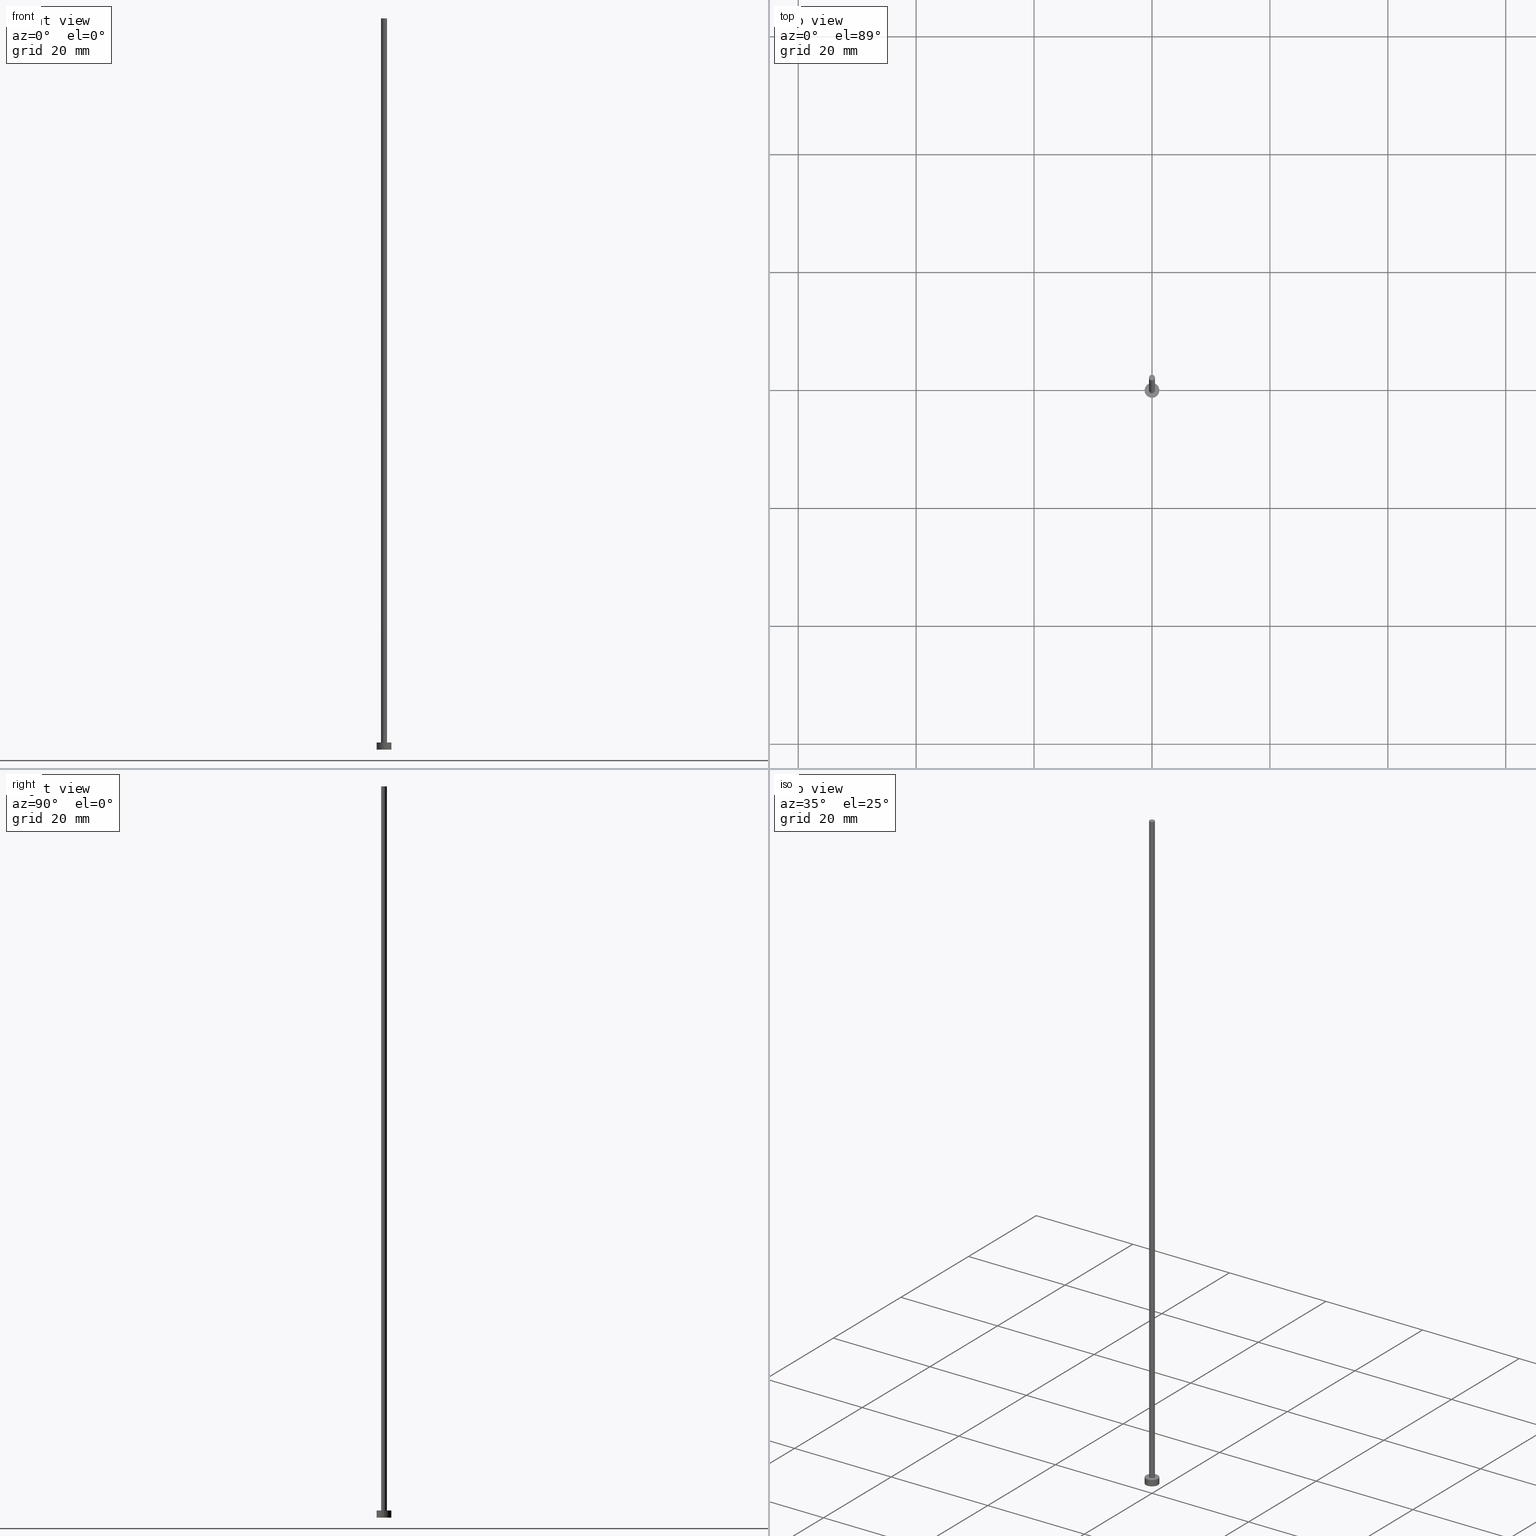
[diagram: canonical four-view strip — front | top / right | iso, engineering-drawing reading convention]
A machine part, canonical four-view strip (front | top / right | iso — engineering-drawing reading convention). The complete STEP part file that produces these views, byte-faithful:
ISO-10303-21;
HEADER;
FILE_DESCRIPTION (( 'STEP AP203' ),
    '1' );
FILE_NAME ('edaf.STEP',
    '2023-04-04T13:15:57',
    ( '' ),
    ( '' ),
    'SwSTEP 2.0',
    'SolidWorks 2019',
    '' );
FILE_SCHEMA (( 'CONFIG_CONTROL_DESIGN' ));
ENDSEC;

DATA;
#1 = APPROVAL_STATUS ( 'not_yet_approved' ) ;
#2 = APPROVAL_STATUS ( 'not_yet_approved' ) ;
#3 = EDGE_LOOP ( 'NONE', ( #116, #196, #43, #94 ) ) ;
#4 = LOCAL_TIME ( 15, 15, 57.00000000000000000, #36 ) ;
#5 = EDGE_LOOP ( 'NONE', ( #78, #132, #115, #60 ) ) ;
#6 = ADVANCED_FACE ( 'NONE', ( #133 ), #218, .T. ) ;
#7 = CARTESIAN_POINT ( 'NONE',  ( -1.250000000000000000, 0.000000000000000000, 1.199999999999999956 ) ) ;
#8 = DIRECTION ( 'NONE',  ( 0.000000000000000000, 0.000000000000000000, 1.000000000000000000 ) ) ;
#9 = DIRECTION ( 'NONE',  ( 1.000000000000000000, 0.000000000000000000, -0.000000000000000000 ) ) ;
#10 = EDGE_CURVE ( 'NONE', #154, #240, #245, .T. ) ;
#11 = FACE_OUTER_BOUND ( 'NONE', #5, .T. ) ;
#12 = DIRECTION ( 'NONE',  ( 1.000000000000000000, 0.000000000000000000, 0.000000000000000000 ) ) ;
#13 = AXIS2_PLACEMENT_3D ( 'NONE', #205, #51, #207 ) ;
#14 = AXIS2_PLACEMENT_3D ( 'NONE', #252, #37, #168 ) ;
#15 = APPROVAL_ROLE ( '' ) ;
#16 = AXIS2_PLACEMENT_3D ( 'NONE', #29, #52, #12 ) ;
#17 = CARTESIAN_POINT ( 'NONE',  ( 1.250000000000000000, 1.530808498934191571E-16, 1.199999999999999956 ) ) ;
#18 = DATE_TIME_ROLE ( 'classification_date' ) ;
#19 = EDGE_LOOP ( 'NONE', ( #41, #198 ) ) ;
#20 = CIRCLE ( 'NONE', #224, 0.5000000000000000000 ) ;
#21 = APPROVAL_PERSON_ORGANIZATION ( #34, #31, #15 ) ;
#22 = VERTEX_POINT ( 'NONE', #64 ) ;
#23 = ADVANCED_FACE ( 'NONE', ( #121, #246 ), #126, .T. ) ;
#24 = ORIENTED_EDGE ( 'NONE', *, *, #93, .F. ) ;
#25 = DIRECTION ( 'NONE',  ( 0.000000000000000000, 0.000000000000000000, 1.000000000000000000 ) ) ;
#26 = CARTESIAN_POINT ( 'NONE',  ( 0.000000000000000000, 0.000000000000000000, 124.0000000000000000 ) ) ;
#27 = AXIS2_PLACEMENT_3D ( 'NONE', #206, #225, #139 ) ;
#28 = DIRECTION ( 'NONE',  ( -0.000000000000000000, -0.000000000000000000, -1.000000000000000000 ) ) ;
#29 = CARTESIAN_POINT ( 'NONE',  ( 0.000000000000000000, 0.000000000000000000, 1.199999999999999956 ) ) ;
#30 = CARTESIAN_POINT ( 'NONE',  ( -1.250000000000000000, 0.000000000000000000, 0.000000000000000000 ) ) ;
#31 = APPROVAL ( #190, 'NEUR�EN�' ) ;
#32 = DIRECTION ( 'NONE',  ( 0.000000000000000000, 0.000000000000000000, 1.000000000000000000 ) ) ;
#33 = DESIGN_CONTEXT ( 'detailed design', #35, 'design' ) ;
#34 = PERSON_AND_ORGANIZATION ( #56, #156 ) ;
#35 = APPLICATION_CONTEXT ( 'configuration controlled 3d designs of mechanical parts and assemblies' ) ;
#36 = COORDINATED_UNIVERSAL_TIME_OFFSET ( 1, 0, .AHEAD. ) ;
#37 = DIRECTION ( 'NONE',  ( 0.000000000000000000, 0.000000000000000000, 1.000000000000000000 ) ) ;
#38 = CC_DESIGN_APPROVAL ( #97, ( #220 ) ) ;
#39 = DIRECTION ( 'NONE',  ( 1.000000000000000000, 0.000000000000000000, 0.000000000000000000 ) ) ;
#40 = COORDINATED_UNIVERSAL_TIME_OFFSET ( 1, 0, .AHEAD. ) ;
#41 = ORIENTED_EDGE ( 'NONE', *, *, #53, .F. ) ;
#42 = EDGE_CURVE ( 'NONE', #240, #154, #211, .T. ) ;
#43 = ORIENTED_EDGE ( 'NONE', *, *, #157, .T. ) ;
#44 = CIRCLE ( 'NONE', #180, 1.250000000000000000 ) ;
#45 = LOCAL_TIME ( 15, 15, 57.00000000000000000, #40 ) ;
#46 = ORIENTED_EDGE ( 'NONE', *, *, #148, .T. ) ;
#47 = AXIS2_PLACEMENT_3D ( 'NONE', #26, #203, #80 ) ;
#48 = CARTESIAN_POINT ( 'NONE',  ( 0.000000000000000000, 0.000000000000000000, 0.000000000000000000 ) ) ;
#49 = DIRECTION ( 'NONE',  ( 1.000000000000000000, 0.000000000000000000, 0.000000000000000000 ) ) ;
#50 = FACE_OUTER_BOUND ( 'NONE', #244, .T. ) ;
#51 = DIRECTION ( 'NONE',  ( -0.000000000000000000, -0.000000000000000000, -1.000000000000000000 ) ) ;
#52 = DIRECTION ( 'NONE',  ( 0.000000000000000000, 0.000000000000000000, 1.000000000000000000 ) ) ;
#53 = EDGE_CURVE ( 'NONE', #22, #155, #20, .T. ) ;
#54 = PERSON_AND_ORGANIZATION ( #56, #156 ) ;
#55 = FACE_OUTER_BOUND ( 'NONE', #223, .T. ) ;
#56 = PERSON ( 'NEUR�EN�', 'NEUR�EN�', 'NEUR�EN�', ('NEUR�EN�'), ('NEUR�EN�'), ('NEUR�EN�') ) ;
#57 = CYLINDRICAL_SURFACE ( 'NONE', #105, 1.250000000000000000 ) ;
#58 = COORDINATED_UNIVERSAL_TIME_OFFSET ( 1, 0, .AHEAD. ) ;
#59 = CC_DESIGN_PERSON_AND_ORGANIZATION_ASSIGNMENT ( #193, #143, ( #220 ) ) ;
#60 = ORIENTED_EDGE ( 'NONE', *, *, #157, .F. ) ;
#61 = ORIENTED_EDGE ( 'NONE', *, *, #208, .F. ) ;
#62 = PLANE ( 'NONE',  #47 ) ;
#63 = CARTESIAN_POINT ( 'NONE',  ( -1.250000000000000000, 0.000000000000000000, 1.199999999999999956 ) ) ;
#64 = CARTESIAN_POINT ( 'NONE',  ( -0.5000000000000000000, 0.000000000000000000, 1.199999999999999956 ) ) ;
#65 = CARTESIAN_POINT ( 'NONE',  ( 0.5000000000000000000, 6.123233995736766036E-17, 1.199999999999999956 ) ) ;
#66 = CARTESIAN_POINT ( 'NONE',  ( 0.000000000000000000, 0.000000000000000000, 1.199999999999999956 ) ) ;
#67 = PRODUCT ( 'edaf', 'edaf', '', ( #170 ) ) ;
#68 = DATE_AND_TIME ( #70, #234 ) ;
#69 = VECTOR ( 'NONE', #28, 1000.000000000000000 ) ;
#70 = CALENDAR_DATE ( 2023, 4, 4 ) ;
#71 = CIRCLE ( 'NONE', #16, 1.250000000000000000 ) ;
#72 = DIRECTION ( 'NONE',  ( -0.000000000000000000, -0.000000000000000000, -1.000000000000000000 ) ) ;
#73 = AXIS2_PLACEMENT_3D ( 'NONE', #248, #138, #160 ) ;
#74 = APPROVAL_ROLE ( '' ) ;
#75 = SECURITY_CLASSIFICATION ( '', '', #210 ) ;
#76 = ORIENTED_EDGE ( 'NONE', *, *, #106, .T. ) ;
#77 = CIRCLE ( 'NONE', #117, 1.250000000000000000 ) ;
#78 = ORIENTED_EDGE ( 'NONE', *, *, #10, .F. ) ;
#79 = EDGE_CURVE ( 'NONE', #155, #22, #197, .T. ) ;
#80 = DIRECTION ( 'NONE',  ( 1.000000000000000000, 0.000000000000000000, -0.000000000000000000 ) ) ;
#81 = AXIS2_PLACEMENT_3D ( 'NONE', #120, #8, #124 ) ;
#82 = DIRECTION ( 'NONE',  ( 0.000000000000000000, 0.000000000000000000, 1.000000000000000000 ) ) ;
#83 = CYLINDRICAL_SURFACE ( 'NONE', #27, 1.250000000000000000 ) ;
#84 = LINE ( 'NONE', #85, #114 ) ;
#85 = CARTESIAN_POINT ( 'NONE',  ( 1.250000000000000000, 1.530808498934191571E-16, 1.199999999999999956 ) ) ;
#86 = UNCERTAINTY_MEASURE_WITH_UNIT (LENGTH_MEASURE( 1.000000000000000082E-05 ), #237, 'distance_accuracy_value', 'NONE');
#87 = FACE_OUTER_BOUND ( 'NONE', #176, .T. ) ;
#88 = CARTESIAN_POINT ( 'NONE',  ( -0.5000000000000000000, 0.000000000000000000, 124.0000000000000000 ) ) ;
#89 =( NAMED_UNIT ( * ) PLANE_ANGLE_UNIT ( ) SI_UNIT ( $, .RADIAN. ) );
#90 = APPLICATION_PROTOCOL_DEFINITION ( 'international standard', 'config_control_design', 1994, #35 ) ;
#91 = AXIS2_PLACEMENT_3D ( 'NONE', #179, #142, #9 ) ;
#92 = EDGE_LOOP ( 'NONE', ( #96, #158 ) ) ;
#93 = EDGE_CURVE ( 'NONE', #242, #217, #84, .T. ) ;
#94 = ORIENTED_EDGE ( 'NONE', *, *, #53, .T. ) ;
#95 = VERTEX_POINT ( 'NONE', #63 ) ;
#96 = ORIENTED_EDGE ( 'NONE', *, *, #215, .T. ) ;
#97 = APPROVAL ( #1, 'NEUR�EN�' ) ;
#98 = CARTESIAN_POINT ( 'NONE',  ( 1.250000000000000000, 1.530808498934191571E-16, 0.000000000000000000 ) ) ;
#99 = DIRECTION ( 'NONE',  ( -0.000000000000000000, -0.000000000000000000, -1.000000000000000000 ) ) ;
#100 = AXIS2_PLACEMENT_3D ( 'NONE', #130, #32, #39 ) ;
#101 = CARTESIAN_POINT ( 'NONE',  ( 0.5000000000000000000, 6.123233995736766036E-17, 124.0000000000000000 ) ) ;
#102 = CARTESIAN_POINT ( 'NONE',  ( 0.000000000000000000, 0.000000000000000000, 124.0000000000000000 ) ) ;
#103 = CARTESIAN_POINT ( 'NONE',  ( 0.000000000000000000, 0.000000000000000000, 1.199999999999999956 ) ) ;
#104 = PLANE ( 'NONE',  #14 ) ;
#105 = AXIS2_PLACEMENT_3D ( 'NONE', #189, #72, #191 ) ;
#106 = EDGE_CURVE ( 'NONE', #217, #201, #44, .T. ) ;
#107 = PERSON_AND_ORGANIZATION ( #56, #156 ) ;
#108 = APPLICATION_PROTOCOL_DEFINITION ( 'international standard', 'config_control_design', 1994, #167 ) ;
#109 = DATE_AND_TIME ( #235, #188 ) ;
#110 = EDGE_CURVE ( 'NONE', #95, #201, #183, .T. ) ;
#111 = CC_DESIGN_SECURITY_CLASSIFICATION ( #75, ( #220 ) ) ;
#112 = PERSON_AND_ORGANIZATION ( #56, #156 ) ;
#113 = DATE_AND_TIME ( #195, #118 ) ;
#114 = VECTOR ( 'NONE', #99, 1000.000000000000000 ) ;
#115 = ORIENTED_EDGE ( 'NONE', *, *, #79, .T. ) ;
#116 = ORIENTED_EDGE ( 'NONE', *, *, #137, .F. ) ;
#117 = AXIS2_PLACEMENT_3D ( 'NONE', #103, #186, #165 ) ;
#118 = LOCAL_TIME ( 15, 15, 57.00000000000000000, #58 ) ;
#119 = FACE_OUTER_BOUND ( 'NONE', #239, .T. ) ;
#120 = CARTESIAN_POINT ( 'NONE',  ( 0.000000000000000000, 0.000000000000000000, 1.199999999999999956 ) ) ;
#121 = FACE_BOUND ( 'NONE', #19, .T. ) ;
#122 = CC_DESIGN_APPROVAL ( #31, ( #253 ) ) ;
#123 = APPROVAL ( #2, 'NEUR�EN�' ) ;
#124 = DIRECTION ( 'NONE',  ( 1.000000000000000000, 0.000000000000000000, 0.000000000000000000 ) ) ;
#125 = PRODUCT_DEFINITION_SHAPE ( 'NONE', 'NONE',  #253 ) ;
#126 = PLANE ( 'NONE',  #91 ) ;
#127 = PERSON_AND_ORGANIZATION_ROLE ( 'design_supplier' ) ;
#128 = ADVANCED_FACE ( 'NONE', ( #50 ), #83, .T. ) ;
#129 = APPROVAL_PERSON_ORGANIZATION ( #216, #123, #74 ) ;
#130 = CARTESIAN_POINT ( 'NONE',  ( 0.000000000000000000, 0.000000000000000000, 0.000000000000000000 ) ) ;
#131 = PERSON_AND_ORGANIZATION ( #56, #156 ) ;
#132 = ORIENTED_EDGE ( 'NONE', *, *, #137, .T. ) ;
#133 = FACE_OUTER_BOUND ( 'NONE', #3, .T. ) ;
#134 = VECTOR ( 'NONE', #163, 1000.000000000000000 ) ;
#135 = CARTESIAN_POINT ( 'NONE',  ( 0.000000000000000000, 0.000000000000000000, 124.0000000000000000 ) ) ;
#136 = ORIENTED_EDGE ( 'NONE', *, *, #110, .F. ) ;
#137 = EDGE_CURVE ( 'NONE', #154, #155, #162, .T. ) ;
#138 = DIRECTION ( 'NONE',  ( 0.000000000000000000, 0.000000000000000000, 1.000000000000000000 ) ) ;
#139 = DIRECTION ( 'NONE',  ( -1.000000000000000000, 0.000000000000000000, 0.000000000000000000 ) ) ;
#140 = CARTESIAN_POINT ( 'NONE',  ( 0.000000000000000000, 0.000000000000000000, 0.000000000000000000 ) ) ;
#141 = LINE ( 'NONE', #184, #182 ) ;
#142 = DIRECTION ( 'NONE',  ( 0.000000000000000000, 0.000000000000000000, 1.000000000000000000 ) ) ;
#143 = PERSON_AND_ORGANIZATION_ROLE ( 'creator' ) ;
#144 = AXIS2_PLACEMENT_3D ( 'NONE', #135, #221, #249 ) ;
#145 = AXIS2_PLACEMENT_3D ( 'NONE', #48, #250, #226 ) ;
#146 = APPROVAL_ROLE ( '' ) ;
#147 = PERSON_AND_ORGANIZATION ( #56, #156 ) ;
#148 = EDGE_CURVE ( 'NONE', #201, #217, #241, .T. ) ;
#149 = COORDINATED_UNIVERSAL_TIME_OFFSET ( 1, 0, .AHEAD. ) ;
#150 = CALENDAR_DATE ( 2023, 4, 4 ) ;
#151 = APPROVAL_PERSON_ORGANIZATION ( #112, #97, #146 ) ;
#152 = PRODUCT_RELATED_PRODUCT_CATEGORY ( 'detail', '', ( #67 ) ) ;
#153 = ORIENTED_EDGE ( 'NONE', *, *, #106, .F. ) ;
#154 = VERTEX_POINT ( 'NONE', #101 ) ;
#155 = VERTEX_POINT ( 'NONE', #65 ) ;
#156 = ORGANIZATION ( 'NEUR�EN�', 'NEUR�EN�', '' ) ;
#157 = EDGE_CURVE ( 'NONE', #240, #22, #141, .T. ) ;
#158 = ORIENTED_EDGE ( 'NONE', *, *, #208, .T. ) ;
#159 = ORIENTED_EDGE ( 'NONE', *, *, #42, .T. ) ;
#160 = DIRECTION ( 'NONE',  ( 1.000000000000000000, 0.000000000000000000, 0.000000000000000000 ) ) ;
#161 = CARTESIAN_POINT ( 'NONE',  ( 0.5000000000000000000, 6.123233995736766036E-17, 124.0000000000000000 ) ) ;
#162 = LINE ( 'NONE', #161, #134 ) ;
#163 = DIRECTION ( 'NONE',  ( -0.000000000000000000, -0.000000000000000000, -1.000000000000000000 ) ) ;
#164 = CC_DESIGN_PERSON_AND_ORGANIZATION_ASSIGNMENT ( #107, #212, ( #67 ) ) ;
#165 = DIRECTION ( 'NONE',  ( 1.000000000000000000, 0.000000000000000000, 0.000000000000000000 ) ) ;
#166 = MANIFOLD_SOLID_BREP ( 'P�idat vysunut�m3', #177 ) ;
#167 = APPLICATION_CONTEXT ( 'configuration controlled 3d designs of mechanical parts and assemblies' ) ;
#168 = DIRECTION ( 'NONE',  ( 1.000000000000000000, 0.000000000000000000, -0.000000000000000000 ) ) ;
#169 =( GEOMETRIC_REPRESENTATION_CONTEXT ( 3 ) GLOBAL_UNCERTAINTY_ASSIGNED_CONTEXT ( ( #86 ) ) GLOBAL_UNIT_ASSIGNED_CONTEXT ( ( #237, #89, #213 ) ) REPRESENTATION_CONTEXT ( 'NONE', 'WORKASPACE' ) );
#170 = MECHANICAL_CONTEXT ( 'NONE', #167, 'mechanical' ) ;
#171 = CC_DESIGN_PERSON_AND_ORGANIZATION_ASSIGNMENT ( #54, #127, ( #220 ) ) ;
#172 = APPROVAL_DATE_TIME ( #109, #97 ) ;
#173 = DATE_AND_TIME ( #150, #45 ) ;
#174 = ORIENTED_EDGE ( 'NONE', *, *, #110, .T. ) ;
#175 = ORIENTED_EDGE ( 'NONE', *, *, #93, .T. ) ;
#176 = EDGE_LOOP ( 'NONE', ( #178, #153 ) ) ;
#177 = CLOSED_SHELL ( 'NONE', ( #185, #236, #128, #23, #233, #6, #229 ) ) ;
#178 = ORIENTED_EDGE ( 'NONE', *, *, #148, .F. ) ;
#179 = CARTESIAN_POINT ( 'NONE',  ( 0.000000000000000000, 0.000000000000000000, 1.199999999999999956 ) ) ;
#180 = AXIS2_PLACEMENT_3D ( 'NONE', #140, #82, #49 ) ;
#181 = DIRECTION ( 'NONE',  ( 0.000000000000000000, 0.000000000000000000, 1.000000000000000000 ) ) ;
#182 = VECTOR ( 'NONE', #228, 1000.000000000000000 ) ;
#183 = LINE ( 'NONE', #7, #69 ) ;
#184 = CARTESIAN_POINT ( 'NONE',  ( -0.5000000000000000000, 0.000000000000000000, 124.0000000000000000 ) ) ;
#185 = ADVANCED_FACE ( 'NONE', ( #11 ), #230, .T. ) ;
#186 = DIRECTION ( 'NONE',  ( 0.000000000000000000, 0.000000000000000000, 1.000000000000000000 ) ) ;
#187 = AXIS2_PLACEMENT_3D ( 'NONE', #102, #181, #209 ) ;
#188 = LOCAL_TIME ( 15, 15, 57.00000000000000000, #149 ) ;
#189 = CARTESIAN_POINT ( 'NONE',  ( 0.000000000000000000, 0.000000000000000000, 1.199999999999999956 ) ) ;
#190 = APPROVAL_STATUS ( 'not_yet_approved' ) ;
#191 = DIRECTION ( 'NONE',  ( -1.000000000000000000, 0.000000000000000000, 0.000000000000000000 ) ) ;
#192 = COORDINATED_UNIVERSAL_TIME_OFFSET ( 1, 0, .AHEAD. ) ;
#193 = PERSON_AND_ORGANIZATION ( #56, #156 ) ;
#194 = CC_DESIGN_DATE_AND_TIME_ASSIGNMENT ( #68, #232, ( #253 ) ) ;
#195 = CALENDAR_DATE ( 2023, 4, 4 ) ;
#196 = ORIENTED_EDGE ( 'NONE', *, *, #42, .F. ) ;
#197 = CIRCLE ( 'NONE', #81, 0.5000000000000000000 ) ;
#198 = ORIENTED_EDGE ( 'NONE', *, *, #79, .F. ) ;
#199 = ORIENTED_EDGE ( 'NONE', *, *, #10, .T. ) ;
#200 = CC_DESIGN_DATE_AND_TIME_ASSIGNMENT ( #173, #18, ( #75 ) ) ;
#201 = VERTEX_POINT ( 'NONE', #30 ) ;
#202 = CC_DESIGN_APPROVAL ( #123, ( #75 ) ) ;
#203 = DIRECTION ( 'NONE',  ( 0.000000000000000000, 0.000000000000000000, 1.000000000000000000 ) ) ;
#204 = CC_DESIGN_PERSON_AND_ORGANIZATION_ASSIGNMENT ( #131, #238, ( #75 ) ) ;
#205 = CARTESIAN_POINT ( 'NONE',  ( 0.000000000000000000, 0.000000000000000000, 124.0000000000000000 ) ) ;
#206 = CARTESIAN_POINT ( 'NONE',  ( 0.000000000000000000, 0.000000000000000000, 1.199999999999999956 ) ) ;
#207 = DIRECTION ( 'NONE',  ( -1.000000000000000000, 0.000000000000000000, 0.000000000000000000 ) ) ;
#208 = EDGE_CURVE ( 'NONE', #242, #95, #71, .T. ) ;
#209 = DIRECTION ( 'NONE',  ( 1.000000000000000000, 0.000000000000000000, 0.000000000000000000 ) ) ;
#210 = SECURITY_CLASSIFICATION_LEVEL ( 'unclassified' ) ;
#211 = CIRCLE ( 'NONE', #73, 0.5000000000000000000 ) ;
#212 = PERSON_AND_ORGANIZATION_ROLE ( 'design_owner' ) ;
#213 =( NAMED_UNIT ( * ) SI_UNIT ( $, .STERADIAN. ) SOLID_ANGLE_UNIT ( ) );
#214 = PERSON_AND_ORGANIZATION_ROLE ( 'creator' ) ;
#215 = EDGE_CURVE ( 'NONE', #95, #242, #77, .T. ) ;
#216 = PERSON_AND_ORGANIZATION ( #56, #156 ) ;
#217 = VERTEX_POINT ( 'NONE', #98 ) ;
#218 = CYLINDRICAL_SURFACE ( 'NONE', #144, 0.5000000000000000000 ) ;
#219 = ADVANCED_BREP_SHAPE_REPRESENTATION ( 'edaf', ( #166, #100 ), #169 ) ;
#220 = PRODUCT_DEFINITION_FORMATION_WITH_SPECIFIED_SOURCE ( 'LIBOVOLN�', '', #67, .NOT_KNOWN. ) ;
#221 = DIRECTION ( 'NONE',  ( -0.000000000000000000, -0.000000000000000000, -1.000000000000000000 ) ) ;
#222 = ORIENTED_EDGE ( 'NONE', *, *, #215, .F. ) ;
#223 = EDGE_LOOP ( 'NONE', ( #61, #175, #76, #136 ) ) ;
#224 = AXIS2_PLACEMENT_3D ( 'NONE', #66, #25, #227 ) ;
#225 = DIRECTION ( 'NONE',  ( -0.000000000000000000, -0.000000000000000000, -1.000000000000000000 ) ) ;
#226 = DIRECTION ( 'NONE',  ( 1.000000000000000000, 0.000000000000000000, 0.000000000000000000 ) ) ;
#227 = DIRECTION ( 'NONE',  ( 1.000000000000000000, 0.000000000000000000, 0.000000000000000000 ) ) ;
#228 = DIRECTION ( 'NONE',  ( -0.000000000000000000, -0.000000000000000000, -1.000000000000000000 ) ) ;
#229 = ADVANCED_FACE ( 'NONE', ( #119 ), #62, .T. ) ;
#230 = CYLINDRICAL_SURFACE ( 'NONE', #13, 0.5000000000000000000 ) ;
#231 = SHAPE_DEFINITION_REPRESENTATION ( #125, #219 ) ;
#232 = DATE_TIME_ROLE ( 'creation_date' ) ;
#233 = ADVANCED_FACE ( 'NONE', ( #87 ), #104, .F. ) ;
#234 = LOCAL_TIME ( 15, 15, 57.00000000000000000, #192 ) ;
#235 = CALENDAR_DATE ( 2023, 4, 4 ) ;
#236 = ADVANCED_FACE ( 'NONE', ( #55 ), #57, .T. ) ;
#237 =( LENGTH_UNIT ( ) NAMED_UNIT ( * ) SI_UNIT ( .MILLI., .METRE. ) );
#238 = PERSON_AND_ORGANIZATION_ROLE ( 'classification_officer' ) ;
#239 = EDGE_LOOP ( 'NONE', ( #159, #199 ) ) ;
#240 = VERTEX_POINT ( 'NONE', #88 ) ;
#241 = CIRCLE ( 'NONE', #145, 1.250000000000000000 ) ;
#242 = VERTEX_POINT ( 'NONE', #17 ) ;
#243 = CC_DESIGN_PERSON_AND_ORGANIZATION_ASSIGNMENT ( #147, #214, ( #253 ) ) ;
#244 = EDGE_LOOP ( 'NONE', ( #24, #222, #174, #46 ) ) ;
#245 = CIRCLE ( 'NONE', #187, 0.5000000000000000000 ) ;
#246 = FACE_OUTER_BOUND ( 'NONE', #92, .T. ) ;
#247 = APPROVAL_DATE_TIME ( #113, #123 ) ;
#248 = CARTESIAN_POINT ( 'NONE',  ( 0.000000000000000000, 0.000000000000000000, 124.0000000000000000 ) ) ;
#249 = DIRECTION ( 'NONE',  ( -1.000000000000000000, 0.000000000000000000, 0.000000000000000000 ) ) ;
#250 = DIRECTION ( 'NONE',  ( 0.000000000000000000, 0.000000000000000000, 1.000000000000000000 ) ) ;
#251 = CALENDAR_DATE ( 2023, 4, 4 ) ;
#252 = CARTESIAN_POINT ( 'NONE',  ( 0.000000000000000000, 0.000000000000000000, 0.000000000000000000 ) ) ;
#253 = PRODUCT_DEFINITION ( 'NEZN�M�', '', #220, #33 ) ;
#254 = DATE_AND_TIME ( #251, #4 ) ;
#255 = APPROVAL_DATE_TIME ( #254, #31 ) ;
ENDSEC;
END-ISO-10303-21;
